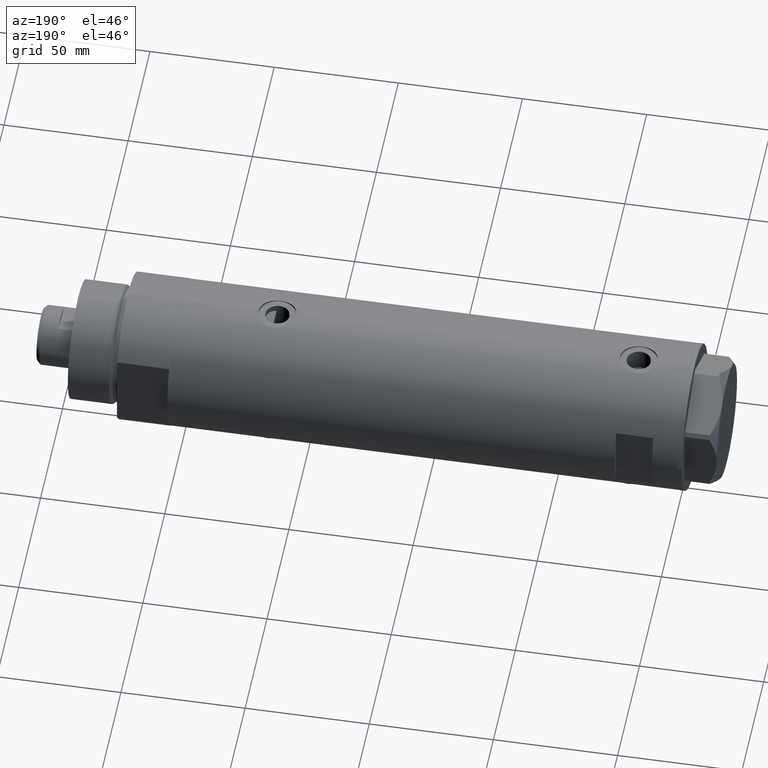
[diagram: clean part render]
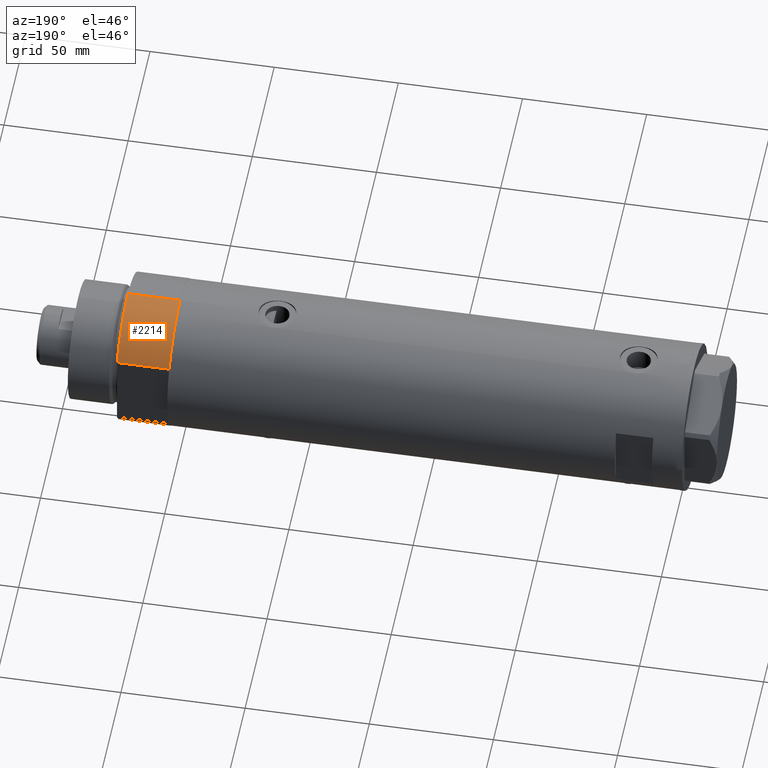
[diagram: same view with one face highlighted and labeled with its STEP entity id]
A machine part, auxiliary view. The second image highlights one B-rep face of the part: STEP entity #2214.
In plain terms, the highlighted cylindrical surface (partial cylindrical patch) has radius 29.5 mm, axis along (-1, -0, 0).
Its self-contained STEP definition (entity closure, byte-faithful):
#180 = AXIS2_PLACEMENT_3D ( 'NONE', #1051, #337, #3099 ) ;
#317 = CIRCLE ( 'NONE', #898, 29.50000000000000355 ) ;
#337 = DIRECTION ( 'NONE',  ( -0.000000000000000000, -0.000000000000000000, -1.000000000000000000 ) ) ;
#443 = DIRECTION ( 'NONE',  ( -0.000000000000000000, -0.000000000000000000, -1.000000000000000000 ) ) ;
#610 = EDGE_CURVE ( 'NONE', #3220, #2669, #815, .T. ) ;
#623 = DIRECTION ( 'NONE',  ( 1.000000000000000000, 0.000000000000000000, 0.000000000000000000 ) ) ;
#640 = DIRECTION ( 'NONE',  ( 1.000000000000000000, 0.000000000000000000, 0.000000000000000000 ) ) ;
#815 = CIRCLE ( 'NONE', #1026, 29.50000000000000355 ) ;
#898 = AXIS2_PLACEMENT_3D ( 'NONE', #955, #2332, #623 ) ;
#955 = CARTESIAN_POINT ( 'NONE',  ( 0.000000000000000000, 0.000000000000000000, 0.000000000000000000 ) ) ;
#981 = CARTESIAN_POINT ( 'NONE',  ( -15.66045976336583401, 25.00000000000000000, 0.000000000000000000 ) ) ;
#1026 = AXIS2_PLACEMENT_3D ( 'NONE', #3029, #2020, #640 ) ;
#1051 = CARTESIAN_POINT ( 'NONE',  ( 0.000000000000000000, 0.000000000000000000, 21.00000000000000000 ) ) ;
#1070 = LINE ( 'NONE', #3889, #1549 ) ;
#1327 = LINE ( 'NONE', #981, #4274 ) ;
#1501 = CARTESIAN_POINT ( 'NONE',  ( -15.66045976336583045, 24.99999999999999645, 21.00000000000000355 ) ) ;
#1549 = VECTOR ( 'NONE', #443, 1000.000000000000000 ) ;
#1603 = EDGE_CURVE ( 'NONE', #3964, #2156, #317, .T. ) ;
#1658 = EDGE_CURVE ( 'NONE', #3964, #3220, #1327, .T. ) ;
#2020 = DIRECTION ( 'NONE',  ( 0.000000000000000000, 0.000000000000000000, 1.000000000000000000 ) ) ;
#2037 = ORIENTED_EDGE ( 'NONE', *, *, #2287, .F. ) ;
#2052 = FACE_OUTER_BOUND ( 'NONE', #2383, .T. ) ;
#2065 = ORIENTED_EDGE ( 'NONE', *, *, #1658, .F. ) ;
#2156 = VERTEX_POINT ( 'NONE', #3419 ) ;
#2214 = ADVANCED_FACE ( 'NONE', ( #2052 ), #3779, .T. ) ;
#2287 = EDGE_CURVE ( 'NONE', #2669, #2156, #1070, .T. ) ;
#2332 = DIRECTION ( 'NONE',  ( 0.000000000000000000, 0.000000000000000000, 1.000000000000000000 ) ) ;
#2383 = EDGE_LOOP ( 'NONE', ( #2037, #3793, #2065, #2473 ) ) ;
#2473 = ORIENTED_EDGE ( 'NONE', *, *, #1603, .T. ) ;
#2669 = VERTEX_POINT ( 'NONE', #3808 ) ;
#2771 = CARTESIAN_POINT ( 'NONE',  ( -15.66045976336583401, 25.00000000000000000, 0.000000000000000000 ) ) ;
#3029 = CARTESIAN_POINT ( 'NONE',  ( 0.000000000000000000, 0.000000000000000000, 21.00000000000000000 ) ) ;
#3099 = DIRECTION ( 'NONE',  ( -1.000000000000000000, 0.000000000000000000, 0.000000000000000000 ) ) ;
#3220 = VERTEX_POINT ( 'NONE', #1501 ) ;
#3419 = CARTESIAN_POINT ( 'NONE',  ( -29.50000000000000355, 0.000000000000000000, 0.000000000000000000 ) ) ;
#3779 = CYLINDRICAL_SURFACE ( 'NONE', #180, 29.50000000000000355 ) ;
#3793 = ORIENTED_EDGE ( 'NONE', *, *, #610, .F. ) ;
#3808 = CARTESIAN_POINT ( 'NONE',  ( -29.50000000000000355, 0.000000000000000000, 21.00000000000000000 ) ) ;
#3889 = CARTESIAN_POINT ( 'NONE',  ( -29.50000000000000355, 0.000000000000000000, 21.00000000000000000 ) ) ;
#3964 = VERTEX_POINT ( 'NONE', #2771 ) ;
#4274 = VECTOR ( 'NONE', #4365, 1000.000000000000000 ) ;
#4365 = DIRECTION ( 'NONE',  ( -0.000000000000000000, -0.000000000000000000, 1.000000000000000000 ) ) ;